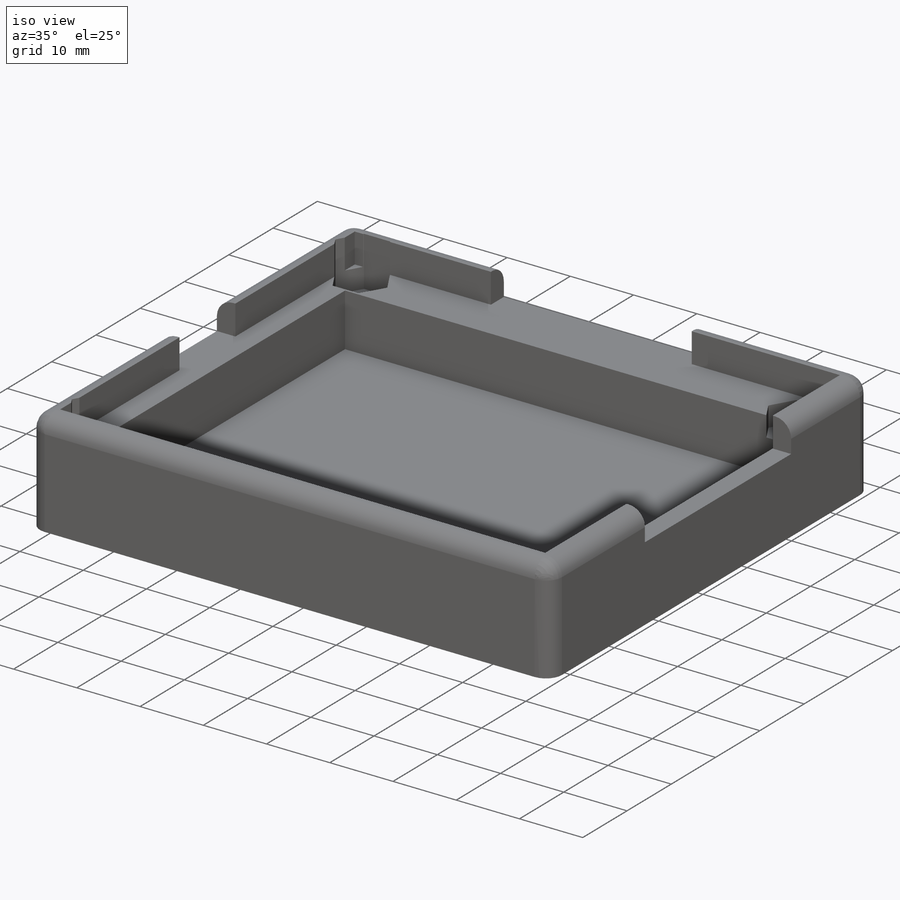
[diagram: iso view]
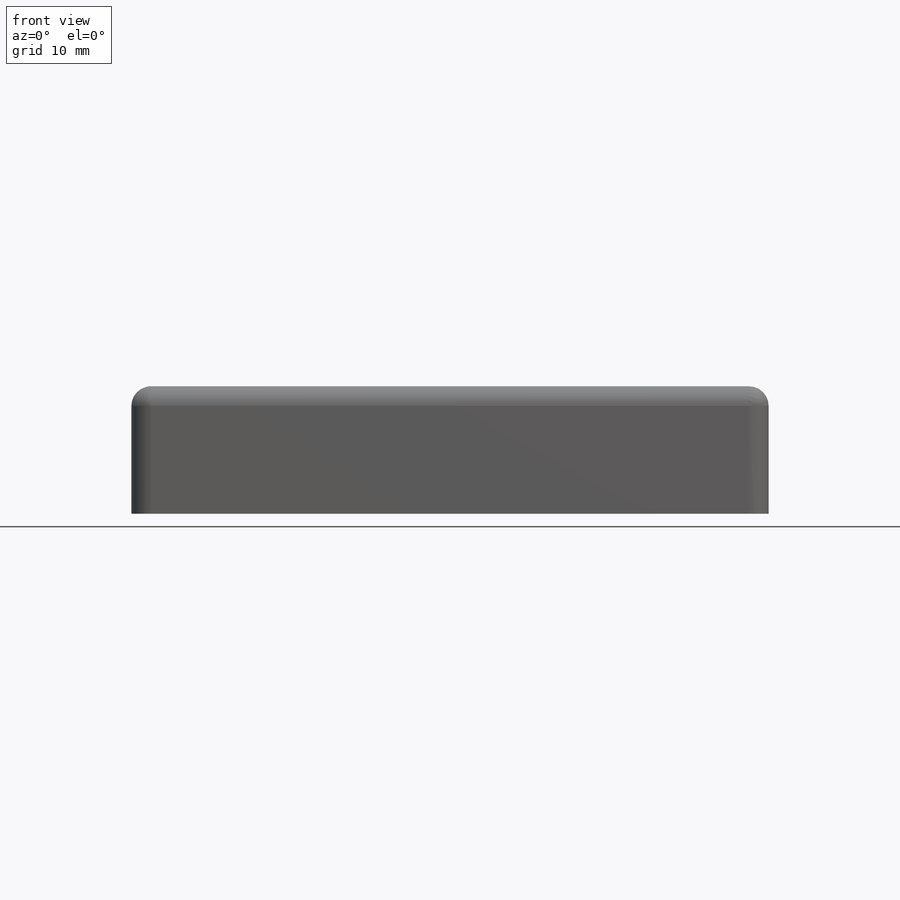
[diagram: front view]
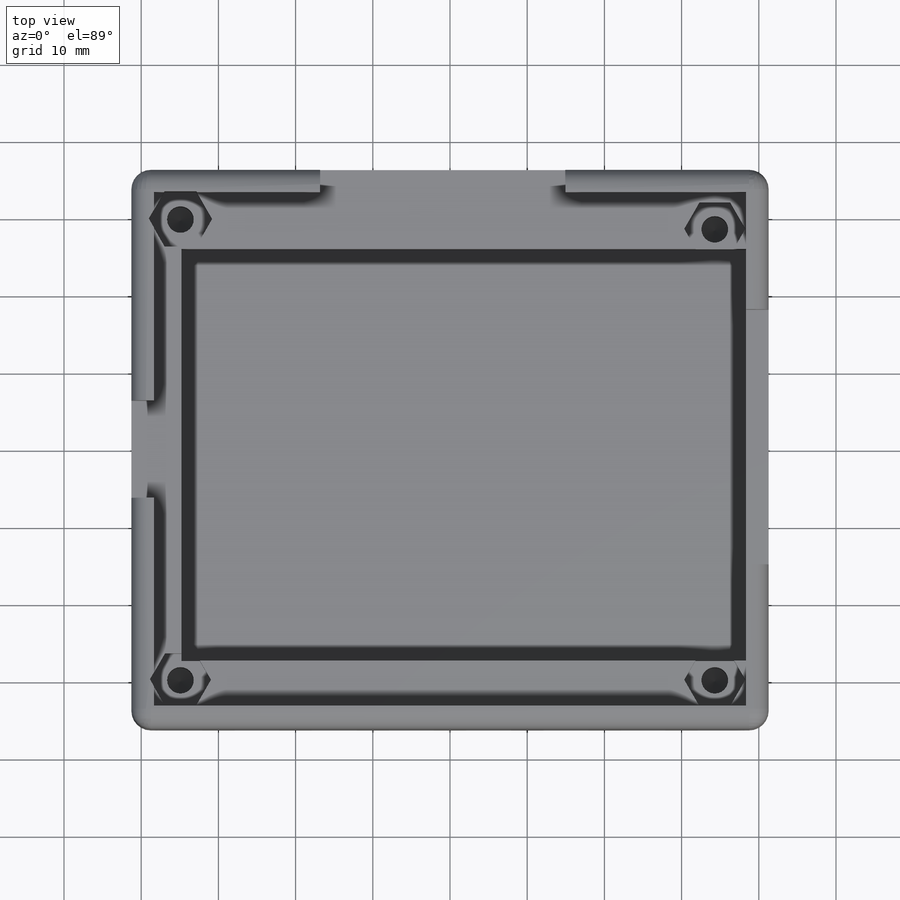
[diagram: top view]
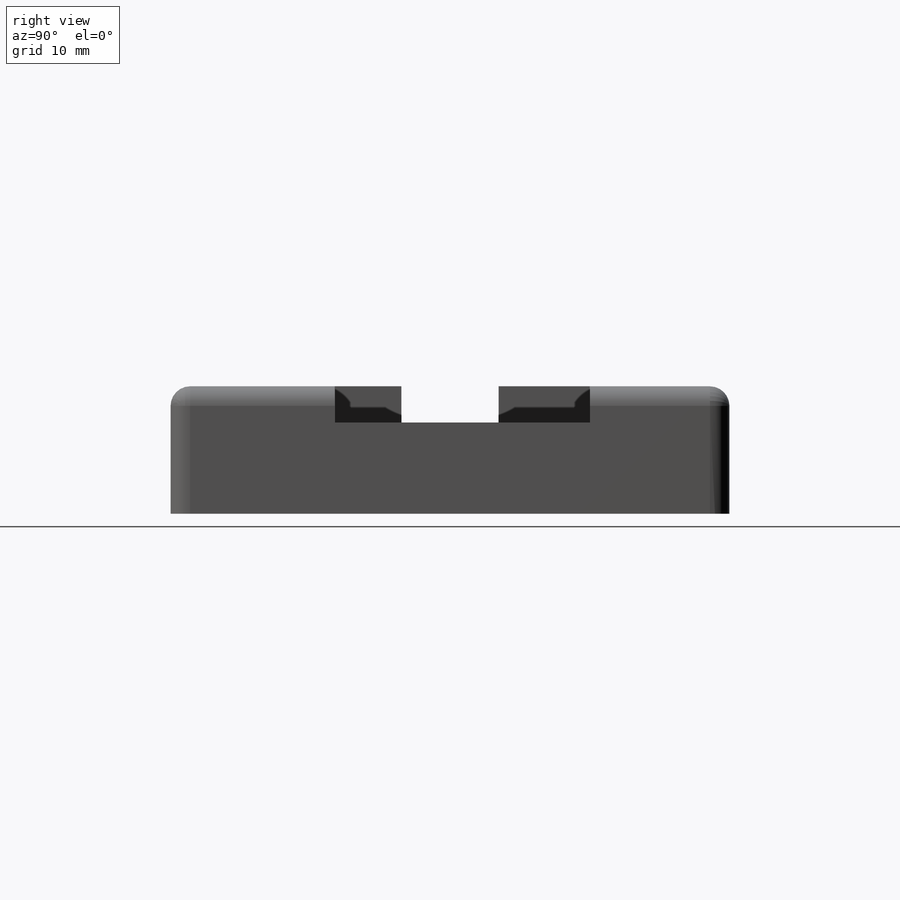
[diagram: right view]
SOLIDWORKS PART (.sldprt)
format: sldprt  version: not decoded by parser v0  size: 436,224 bytes
history: native  units: mm
features: sketch x7, cut_extrude x4, material x1, extrude x1, hole x1, fillet x1 (+12 scaffold rows collapsed)
feature tree (27):
  scaffold x12  (default folders/planes/origin — collapsed)
  material  "Material <not specified>"
  sketch  "Sketch1"  dims[D1=76.2mm D2=66.04mm D3=3.175mm]
  extrude  "Boss-Extrude1"  Depth=16.51mm
  sketch  "Sketch3"  dims[D1=76.2mm D2=66.04mm D3=0.254mm]
  cut_extrude  "Cut-Extrude1"  Depth=4.699mm
  hole  "#4 Clearance Hole1"  Diameter=3.4544mm Depth=10.16mm
  sketch  "Sketch7"  dims[D1=76.2mm D2=66.04mm D3=3.175mm D4=62.865mm D5=3.175mm D6=3.175mm D7=3.175mm D8=72.39mm D9=72.39mm D10=61.595mm]
  sketch  "Sketch6"  dims[hole-wizard template sketch: 47 standard entries collapsed; hole parameters kept: c15.Hole Depth=10.16mm c15.D3=~14.816244mm c15.Drill Angle=118.0deg]
  sketch  "Sketch8"  dims[D1=0.254mm D2=0.254mm D3=0.254mm D4=0.254mm]
  cut_extrude  "Cut-Extrude2"  Depth=3.175mm
  sketch  "Sketch9"  dims[D1=53.34mm D2=63.5mm]
  cut_extrude  "Cut-Extrude3"  Depth=8.382mm
  sketch  "Sketch12"  dims[D1=76.2mm D2=66.04mm D3=3.175mm D4=33.02mm D5=28.575mm D6=53.34mm D7=57.15mm D8=44.45mm D9=71.755mm D10=43.815mm D11=25.4mm D12=71.755mm D13=71.755mm D14=34.6075mm D15=21.2725mm D16=49.53mm D17=53.0225mm D18=66.04mm]
  cut_extrude  "Cut-Extrude8"  [1 undecoded]
  fillet  "Fillet1"  Radius=2.54mm
decode coverage: 13 of 14 modeling features carry decoded parameters
note: ~ marks probable driven/reference dimensions
note: 1 parameter value undecoded
note: suppression state not decoded; provenance and decode notes live in map.json
